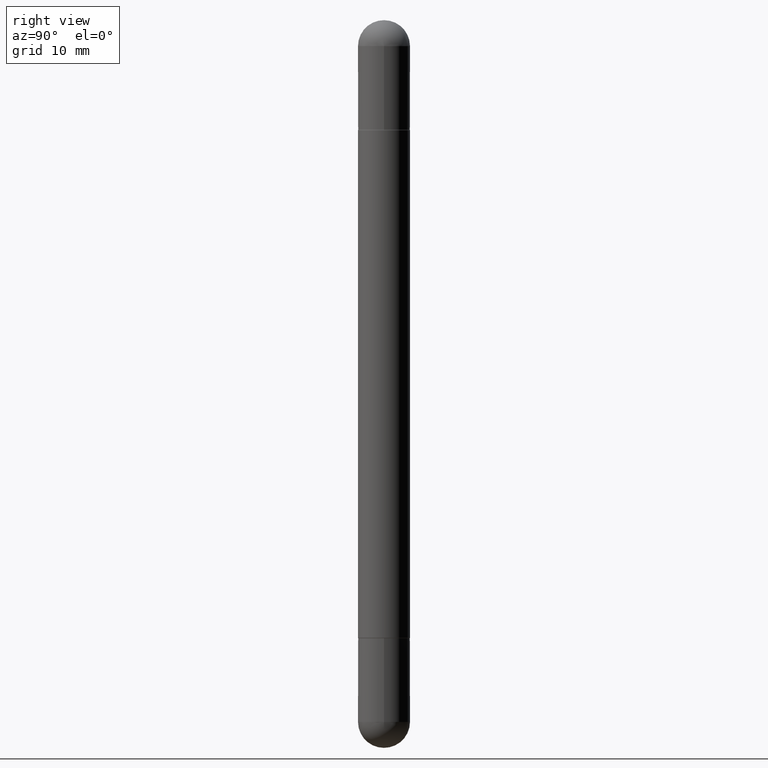
[diagram: clean part render]
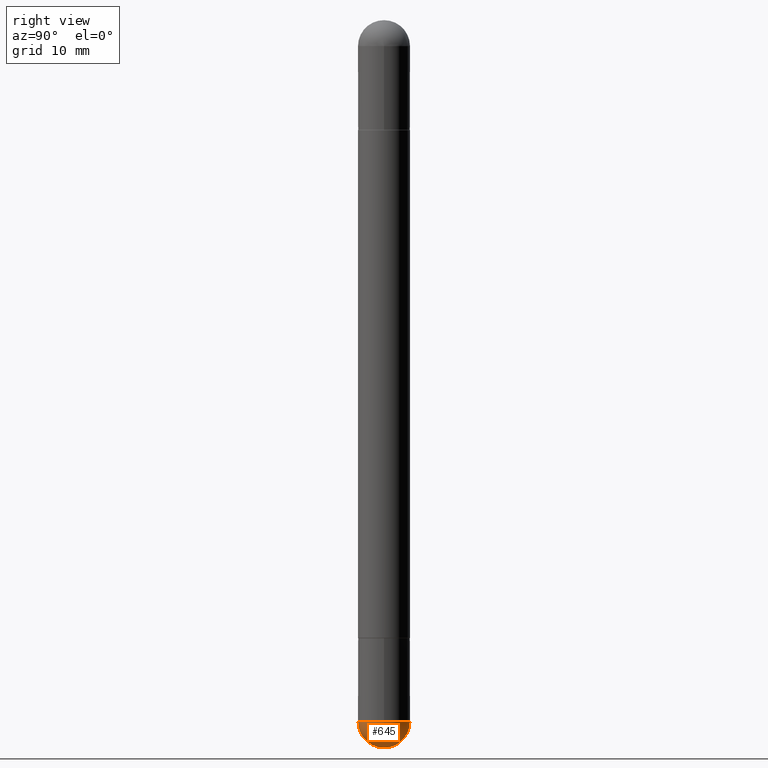
[diagram: same view with one face highlighted and labeled with its STEP entity id]
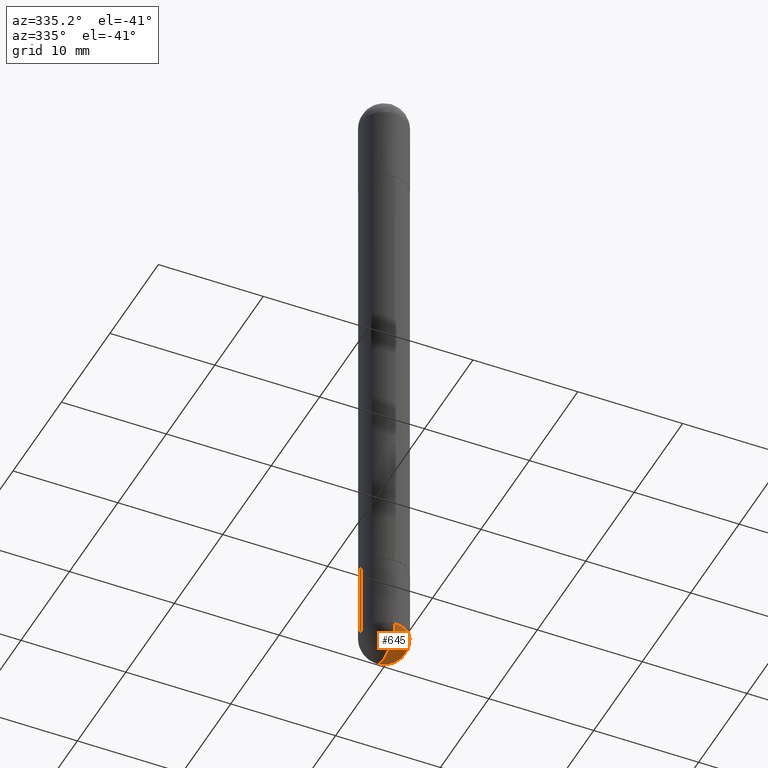
[diagram: same view with one face highlighted and labeled with its STEP entity id]
A machine part, right view. The second image highlights one B-rep face of the part: STEP entity #645.
A second angle (auxiliary view) of the same face is appended — the face is thin or edge-on in the first view.
In plain terms, the highlighted spherical surface has radius 2.2504 mm.
Its self-contained STEP definition (entity closure, byte-faithful):
#8 = CARTESIAN_POINT ( 'NONE',  ( 0.08859999999999999820, -8.471032024301239972E-15, -2.391700000000000159 ) ) ;
#29 = DIRECTION ( 'NONE',  ( 6.982962677686265922E-15, 1.000000000000000000, -3.083349879982230831E-15 ) ) ;
#34 = VERTEX_POINT ( 'NONE', #708 ) ;
#40 = CARTESIAN_POINT ( 'NONE',  ( 5.848827743752992709E-29, -8.350575918111152281E-15, -2.391700000000000159 ) ) ;
#52 = VERTEX_POINT ( 'NONE', #8 ) ;
#57 = DIRECTION ( 'NONE',  ( -2.445468806185136597E-29, 3.491481338843145583E-15, 1.000000000000000000 ) ) ;
#73 = EDGE_CURVE ( 'NONE', #476, #34, #610, .T. ) ;
#90 = CIRCLE ( 'NONE', #349, 0.08860000000000022025 ) ;
#137 = DIRECTION ( 'NONE',  ( 1.000000000000000000, -6.982962677686269077E-15, 0.000000000000000000 ) ) ;
#148 = AXIS2_PLACEMENT_3D ( 'NONE', #658, #575, #715 ) ;
#163 = EDGE_CURVE ( 'NONE', #476, #493, #90, .T. ) ;
#165 = EDGE_CURVE ( 'NONE', #34, #52, #570, .T. ) ;
#166 = CARTESIAN_POINT ( 'NONE',  ( 5.848827743752992709E-29, -8.350575918111152281E-15, -2.391700000000000159 ) ) ;
#263 = AXIS2_PLACEMENT_3D ( 'NONE', #166, #787, #410 ) ;
#274 = CARTESIAN_POINT ( 'NONE',  ( 5.517707965839106462E-29, -8.824758286251204155E-15, -2.391700000000000159 ) ) ;
#287 = ORIENTED_EDGE ( 'NONE', *, *, #165, .F. ) ;
#324 = ORIENTED_EDGE ( 'NONE', *, *, #163, .T. ) ;
#349 = AXIS2_PLACEMENT_3D ( 'NONE', #418, #355, #602 ) ;
#355 = DIRECTION ( 'NONE',  ( 1.000000000000000000, -6.982962677686265922E-15, 4.883557194083112340E-29 ) ) ;
#357 = CARTESIAN_POINT ( 'NONE',  ( 5.738164888728174729E-29, -9.128678347552484260E-15, -2.480300000000000171 ) ) ;
#410 = DIRECTION ( 'NONE',  ( 1.000000000000000000, -6.982962677686269077E-15, 0.000000000000000000 ) ) ;
#418 = CARTESIAN_POINT ( 'NONE',  ( 5.517707965839106462E-29, -8.824758286251204155E-15, -2.391700000000000159 ) ) ;
#447 = CIRCLE ( 'NONE', #263, 0.08859999999999999820 ) ;
#459 = DIRECTION ( 'NONE',  ( -1.000000000000000000, 6.982962677686265922E-15, -4.883557194083112901E-29 ) ) ;
#471 = AXIS2_PLACEMENT_3D ( 'NONE', #274, #459, #29 ) ;
#476 = VERTEX_POINT ( 'NONE', #357 ) ;
#493 = VERTEX_POINT ( 'NONE', #756 ) ;
#520 = SPHERICAL_SURFACE ( 'NONE', #471, 0.08860000000000022025 ) ;
#570 = CIRCLE ( 'NONE', #642, 0.08859999999999999820 ) ;
#575 = DIRECTION ( 'NONE',  ( -1.000000000000000000, 7.105427357601001070E-15, -4.926315508542082329E-29 ) ) ;
#581 = ORIENTED_EDGE ( 'NONE', *, *, #739, .F. ) ;
#588 = EDGE_LOOP ( 'NONE', ( #801, #324, #581, #287 ) ) ;
#602 = DIRECTION ( 'NONE',  ( 6.982962677686265133E-15, 1.000000000000000000, 0.000000000000000000 ) ) ;
#610 = CIRCLE ( 'NONE', #148, 0.08860000000000022025 ) ;
#642 = AXIS2_PLACEMENT_3D ( 'NONE', #40, #57, #137 ) ;
#645 = ADVANCED_FACE ( 'NONE', ( #716 ), #520, .T. ) ;
#658 = CARTESIAN_POINT ( 'NONE',  ( 5.517707965839106462E-29, -8.824758286251204155E-15, -2.391700000000000159 ) ) ;
#708 = CARTESIAN_POINT ( 'NONE',  ( -6.295408638833925456E-16, -0.08860000000000868570, -2.391700000000000159 ) ) ;
#715 = DIRECTION ( 'NONE',  ( -7.105427357601001070E-15, -1.000000000000000000, 0.000000000000000000 ) ) ;
#716 = FACE_OUTER_BOUND ( 'NONE', #588, .T. ) ;
#739 = EDGE_CURVE ( 'NONE', #52, #493, #447, .T. ) ;
#756 = CARTESIAN_POINT ( 'NONE',  ( 6.186904932430607369E-16, 0.08859999999999150500, -2.391700000000000603 ) ) ;
#787 = DIRECTION ( 'NONE',  ( -2.445468806185136597E-29, 3.491481338843145583E-15, 1.000000000000000000 ) ) ;
#801 = ORIENTED_EDGE ( 'NONE', *, *, #73, .F. ) ;